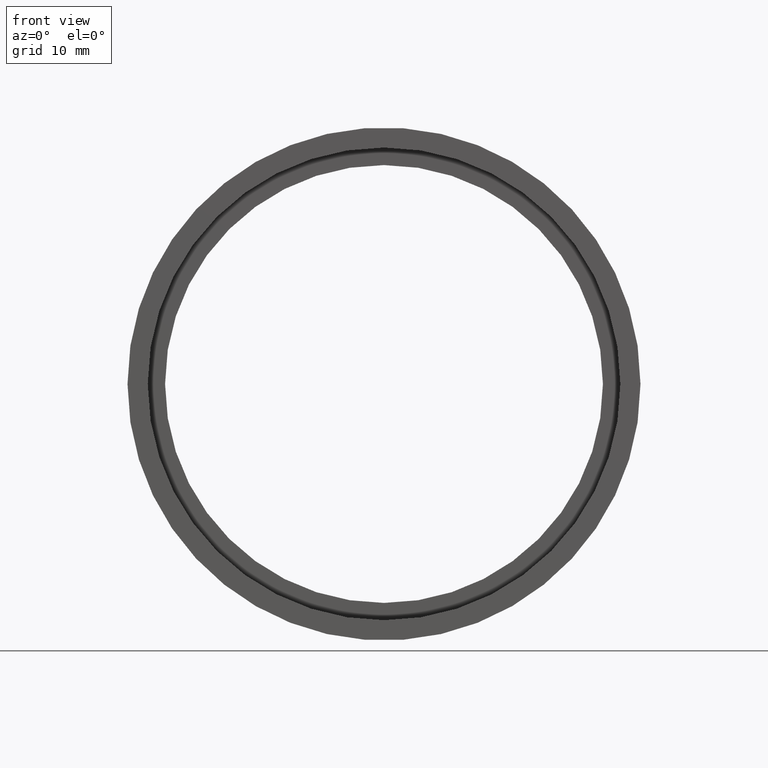
[diagram: clean part render]
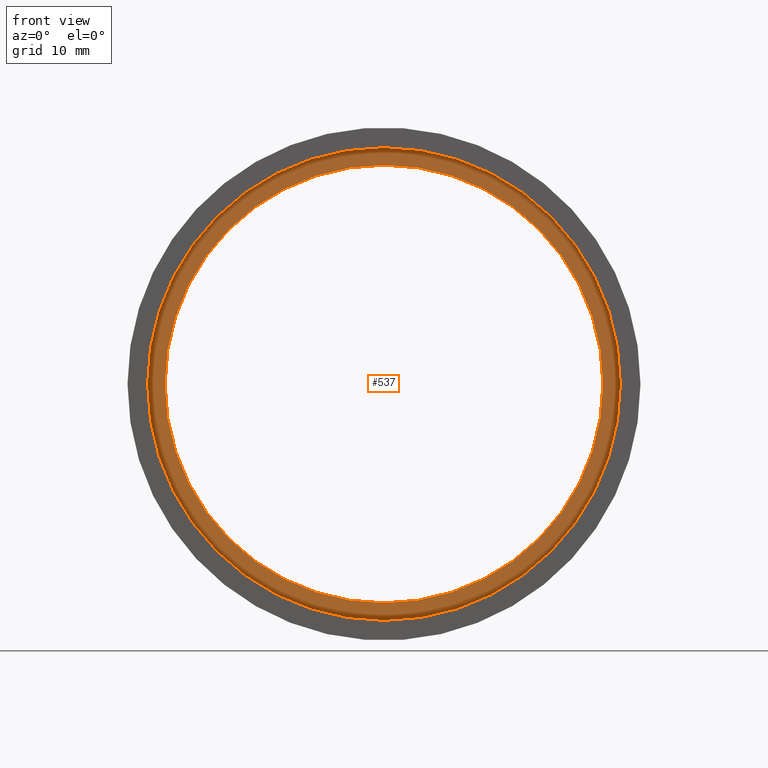
[diagram: same view with one face highlighted and labeled with its STEP entity id]
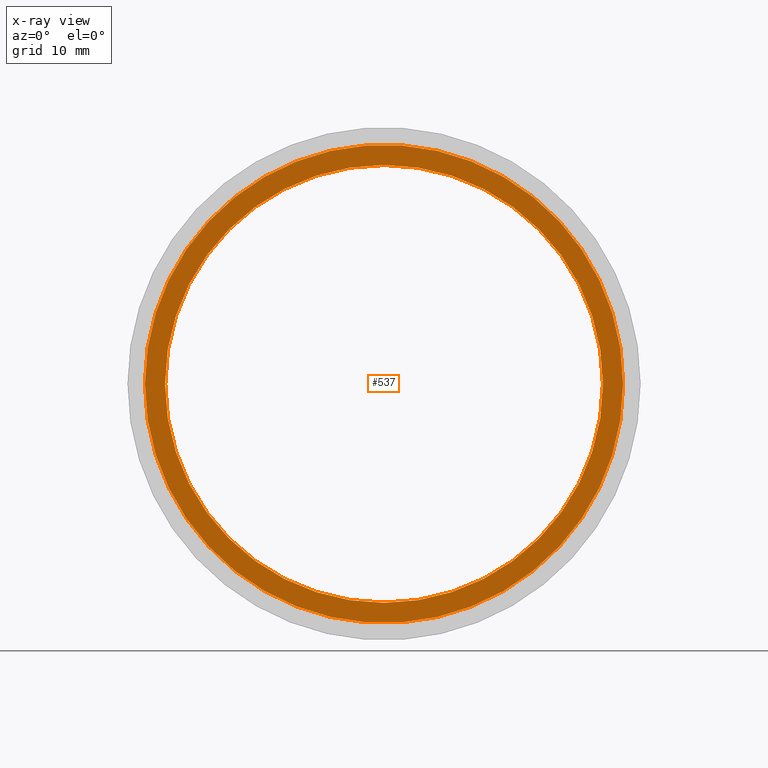
[diagram: x-ray of the same camera — body ghosted, the highlighted face saturated]
A machine part, front view. The second image highlights one B-rep face of the part: STEP entity #537.
The next image is the same camera in x-ray: the body ghosted, the highlighted face saturated — about 0% of this face is hidden behind the body in this view.
In plain terms, the highlighted planar face has unit normal (-0, 1, 0).
Its self-contained STEP definition (entity closure, byte-faithful):
#10 = DIRECTION ( 'NONE',  ( -1.000000000000000000, -1.088738583249042200E-016, 0.0000000000000000000 ) ) ;
#37 = EDGE_CURVE ( 'NONE', #550, #400, #616, .T. ) ;
#41 = AXIS2_PLACEMENT_3D ( 'NONE', #459, #544, #551 ) ;
#100 = VERTEX_POINT ( 'NONE', #190 ) ;
#122 = CIRCLE ( 'NONE', #41, 26.10000000000000100 ) ;
#142 = EDGE_LOOP ( 'NONE', ( #255, #518 ) ) ;
#162 = DIRECTION ( 'NONE',  ( -1.224646799147351000E-016, 1.000000000000000000, -0.0000000000000000000 ) ) ;
#167 = DIRECTION ( 'NONE',  ( -1.000000000000000000, -1.088738583249042200E-016, 0.0000000000000000000 ) ) ;
#180 = CIRCLE ( 'NONE', #398, 23.89999999999999900 ) ;
#186 = ORIENTED_EDGE ( 'NONE', *, *, #325, .T. ) ;
#190 = CARTESIAN_POINT ( 'NONE',  ( 23.89999999999999900, 5.499999999999999100, 2.926905849962173700E-015 ) ) ;
#208 = FACE_BOUND ( 'NONE', #557, .T. ) ;
#218 = CARTESIAN_POINT ( 'NONE',  ( 1.394385078907593200E-015, 5.499999999999996400, 0.0000000000000000000 ) ) ;
#255 = ORIENTED_EDGE ( 'NONE', *, *, #381, .F. ) ;
#265 = CARTESIAN_POINT ( 'NONE',  ( 23.89999999999999900, 5.500000000000000000, 0.0000000000000000000 ) ) ;
#272 = CIRCLE ( 'NONE', #296, 23.89999999999999900 ) ;
#296 = AXIS2_PLACEMENT_3D ( 'NONE', #494, #162, #10 ) ;
#318 = DIRECTION ( 'NONE',  ( -1.224646799147351000E-016, 1.000000000000000000, -0.0000000000000000000 ) ) ;
#325 = EDGE_CURVE ( 'NONE', #562, #100, #272, .T. ) ;
#347 = DIRECTION ( 'NONE',  ( -1.000000000000000000, -1.224646799147351000E-016, 0.0000000000000000000 ) ) ;
#362 = ORIENTED_EDGE ( 'NONE', *, *, #406, .T. ) ;
#375 = CARTESIAN_POINT ( 'NONE',  ( 1.394385078907593200E-015, 5.499999999999996400, 0.0000000000000000000 ) ) ;
#376 = CARTESIAN_POINT ( 'NONE',  ( -23.89999999999999900, 5.499999999999993800, 0.0000000000000000000 ) ) ;
#381 = EDGE_CURVE ( 'NONE', #400, #550, #122, .T. ) ;
#391 = CARTESIAN_POINT ( 'NONE',  ( 26.10000000000000100, 5.500000000000000000, 3.196328145774592300E-015 ) ) ;
#398 = AXIS2_PLACEMENT_3D ( 'NONE', #218, #318, #167 ) ;
#400 = VERTEX_POINT ( 'NONE', #603 ) ;
#406 = EDGE_CURVE ( 'NONE', #100, #562, #180, .T. ) ;
#416 = AXIS2_PLACEMENT_3D ( 'NONE', #265, #451, #347 ) ;
#418 = FACE_OUTER_BOUND ( 'NONE', #142, .T. ) ;
#451 = DIRECTION ( 'NONE',  ( -1.224646799147351000E-016, 1.000000000000000000, 0.0000000000000000000 ) ) ;
#459 = CARTESIAN_POINT ( 'NONE',  ( 1.394385078907593200E-015, 5.499999999999996400, 0.0000000000000000000 ) ) ;
#461 = AXIS2_PLACEMENT_3D ( 'NONE', #375, #520, #480 ) ;
#480 = DIRECTION ( 'NONE',  ( -1.000000000000000000, -1.329290019905599200E-016, 0.0000000000000000000 ) ) ;
#494 = CARTESIAN_POINT ( 'NONE',  ( 1.394385078907593200E-015, 5.499999999999996400, 0.0000000000000000000 ) ) ;
#518 = ORIENTED_EDGE ( 'NONE', *, *, #37, .F. ) ;
#520 = DIRECTION ( 'NONE',  ( -1.224646799147351000E-016, 1.000000000000000000, -0.0000000000000000000 ) ) ;
#537 = ADVANCED_FACE ( 'NONE', ( #418, #208 ), #561, .F. ) ;
#544 = DIRECTION ( 'NONE',  ( -1.224646799147351000E-016, 1.000000000000000000, -0.0000000000000000000 ) ) ;
#550 = VERTEX_POINT ( 'NONE', #391 ) ;
#551 = DIRECTION ( 'NONE',  ( -1.000000000000000000, -1.329290019905599200E-016, 0.0000000000000000000 ) ) ;
#557 = EDGE_LOOP ( 'NONE', ( #186, #362 ) ) ;
#561 = PLANE ( 'NONE',  #416 ) ;
#562 = VERTEX_POINT ( 'NONE', #376 ) ;
#603 = CARTESIAN_POINT ( 'NONE',  ( -26.10000000000000100, 5.499999999999992900, 0.0000000000000000000 ) ) ;
#616 = CIRCLE ( 'NONE', #461, 26.10000000000000100 ) ;